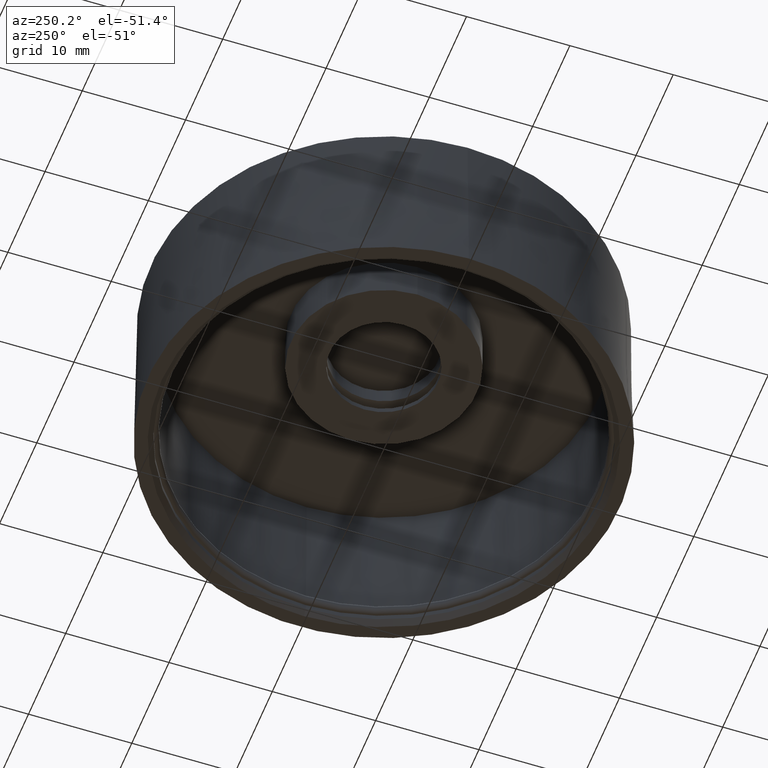
[diagram: clean part render]
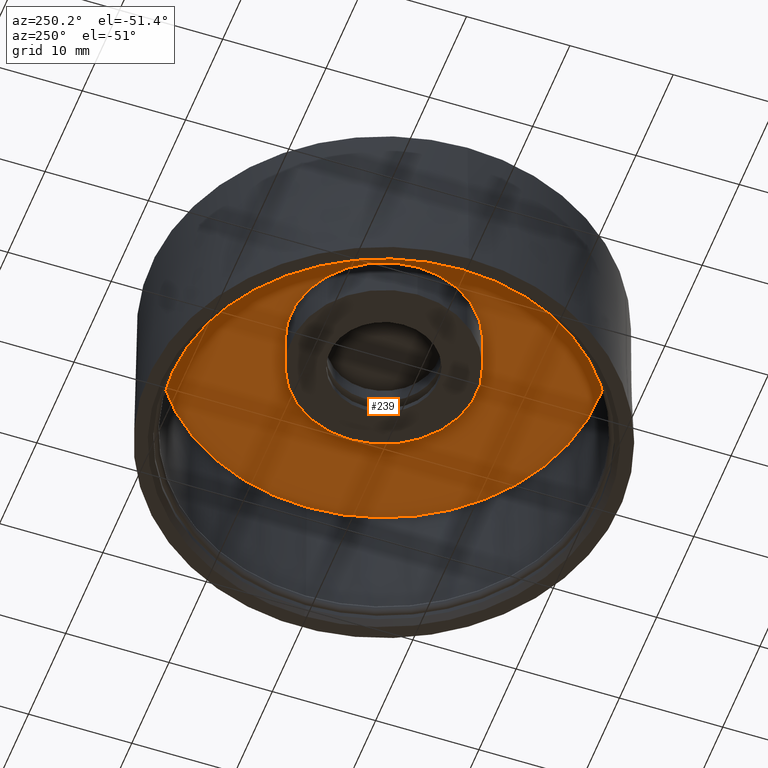
[diagram: same view with one face highlighted and labeled with its STEP entity id]
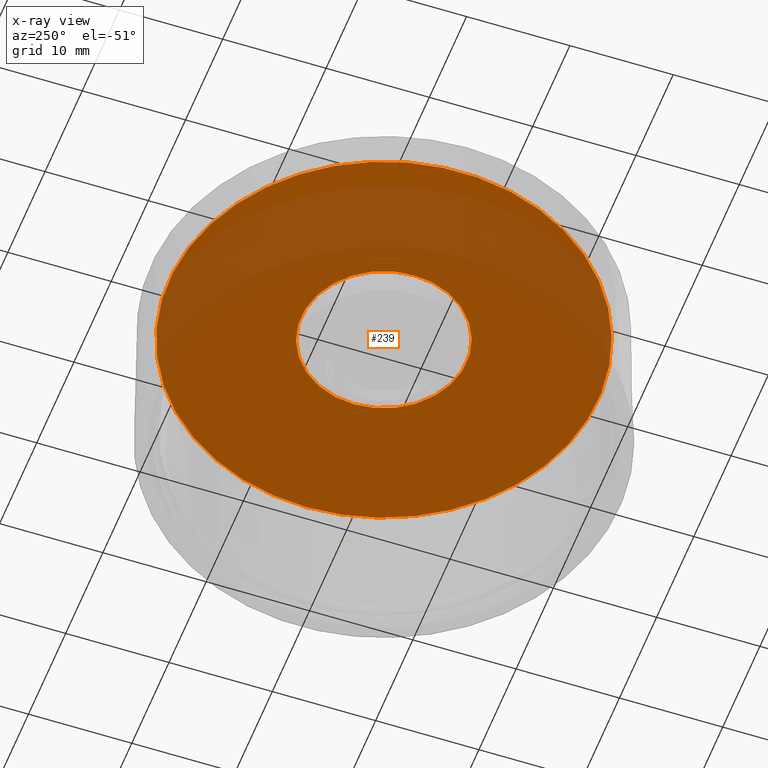
[diagram: x-ray of the same camera — body ghosted, the highlighted face saturated]
A machine part, auxiliary view. The second image highlights one B-rep face of the part: STEP entity #239.
The next image is the same camera in x-ray: the body ghosted, the highlighted face saturated — about 32% of this face is hidden behind the body in this view.
In plain terms, the highlighted planar face has unit normal (0, 0, 1).
Its self-contained STEP definition (entity closure, byte-faithful):
#27 = VERTEX_POINT ( 'NONE', #334 ) ;
#65 = CARTESIAN_POINT ( 'NONE',  ( 0.000000000000000000, 0.000000000000000000, 0.5905511811023621549 ) ) ;
#71 = FACE_BOUND ( 'NONE', #367, .T. ) ;
#139 = ORIENTED_EDGE ( 'NONE', *, *, #875, .F. ) ;
#172 = EDGE_CURVE ( 'NONE', #481, #481, #912, .T. ) ;
#218 = DIRECTION ( 'NONE',  ( 0.000000000000000000, 0.000000000000000000, 1.000000000000000000 ) ) ;
#239 = ADVANCED_FACE ( 'NONE', ( #71, #563 ), #468, .F. ) ;
#297 = ORIENTED_EDGE ( 'NONE', *, *, #172, .T. ) ;
#303 = DIRECTION ( 'NONE',  ( 0.000000000000000000, 0.000000000000000000, 1.000000000000000000 ) ) ;
#334 = CARTESIAN_POINT ( 'NONE',  ( 0.8169291338582678197, 0.000000000000000000, 0.5905511811023621549 ) ) ;
#358 = EDGE_LOOP ( 'NONE', ( #139 ) ) ;
#367 = EDGE_LOOP ( 'NONE', ( #297 ) ) ;
#398 = CIRCLE ( 'NONE', #785, 0.8169291338582678197 ) ;
#463 = DIRECTION ( 'NONE',  ( 0.000000000000000000, 0.000000000000000000, 1.000000000000000000 ) ) ;
#468 = PLANE ( 'NONE',  #879 ) ;
#474 = CARTESIAN_POINT ( 'NONE',  ( 3.642354974003307406E-17, 0.000000000000000000, 0.5905511811023621549 ) ) ;
#481 = VERTEX_POINT ( 'NONE', #490 ) ;
#490 = CARTESIAN_POINT ( 'NONE',  ( 0.3149606299212598381, 0.000000000000000000, 0.5905511811023621549 ) ) ;
#538 = DIRECTION ( 'NONE',  ( 1.000000000000000000, 0.000000000000000000, 0.000000000000000000 ) ) ;
#563 = FACE_OUTER_BOUND ( 'NONE', #358, .T. ) ;
#671 = AXIS2_PLACEMENT_3D ( 'NONE', #65, #218, #688 ) ;
#680 = CARTESIAN_POINT ( 'NONE',  ( 0.000000000000000000, 0.000000000000000000, 0.5905511811023621549 ) ) ;
#688 = DIRECTION ( 'NONE',  ( 1.000000000000000000, 0.000000000000000000, 0.000000000000000000 ) ) ;
#772 = DIRECTION ( 'NONE',  ( 1.000000000000000000, 0.000000000000000000, 0.000000000000000000 ) ) ;
#785 = AXIS2_PLACEMENT_3D ( 'NONE', #680, #303, #538 ) ;
#875 = EDGE_CURVE ( 'NONE', #27, #27, #398, .T. ) ;
#879 = AXIS2_PLACEMENT_3D ( 'NONE', #474, #463, #772 ) ;
#912 = CIRCLE ( 'NONE', #671, 0.3149606299212598381 ) ;